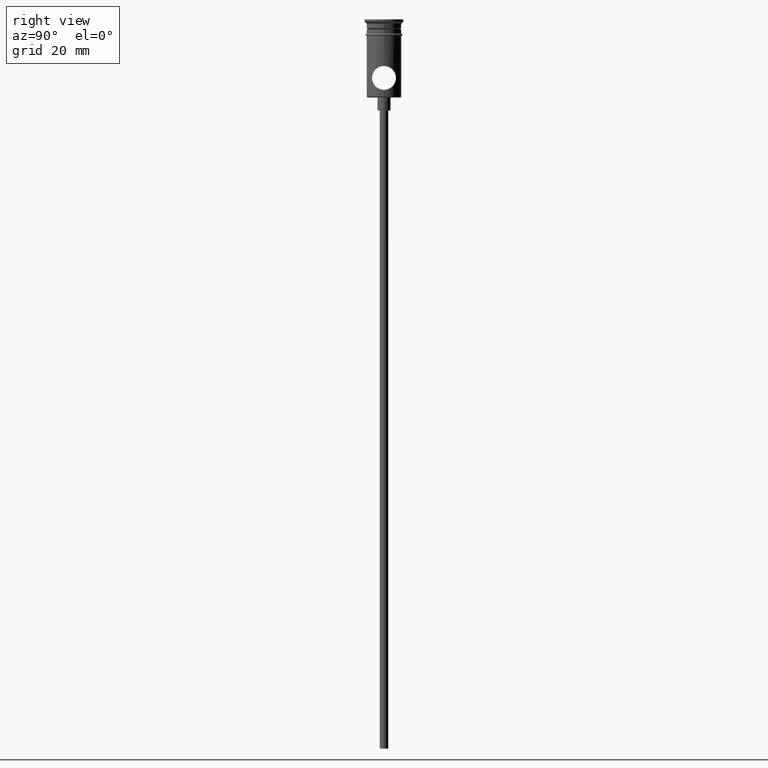
[diagram: clean part render]
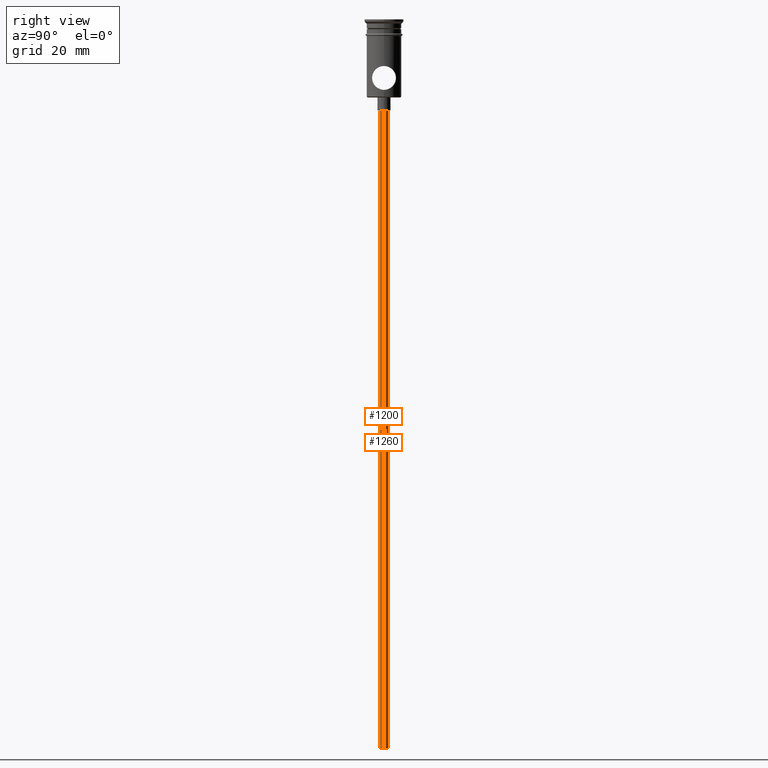
[diagram: same view with one multi-face feature highlighted, each face labeled with its STEP entity id]
A machine part, right view. The highlighted faces form ONE feature: a constant-radius fillet chain: 2 tangent blend faces with common blend radius 1 mm. The faces share edges in the B-rep.
Their STEP definitions:
[1] entity #1260 (Cylinder):
#31 = CARTESIAN_POINT ( 'NONE',  ( 0.000000000000000000, 0.000000000000000000, -20.99999999999999645 ) ) ;
#51 = ORIENTED_EDGE ( 'NONE', *, *, #743, .T. ) ;
#81 = DIRECTION ( 'NONE',  ( -1.000000000000000000, 0.000000000000000000, 0.000000000000000000 ) ) ;
#82 = FACE_OUTER_BOUND ( 'NONE', #456, .T. ) ;
#83 = EDGE_CURVE ( 'NONE', #607, #355, #482, .T. ) ;
#85 = DIRECTION ( 'NONE',  ( -0.000000000000000000, -0.000000000000000000, 1.000000000000000000 ) ) ;
#137 = AXIS2_PLACEMENT_3D ( 'NONE', #219, #1082, #81 ) ;
#154 = DIRECTION ( 'NONE',  ( -1.000000000000000000, 0.000000000000000000, 0.000000000000000000 ) ) ;
#219 = CARTESIAN_POINT ( 'NONE',  ( 0.000000000000000000, 0.000000000000000000, -167.9999999999999716 ) ) ;
#222 = ORIENTED_EDGE ( 'NONE', *, *, #83, .F. ) ;
#288 = CARTESIAN_POINT ( 'NONE',  ( 0.9999999999999997780, 0.000000000000000000, -20.99999999999999645 ) ) ;
#345 = CARTESIAN_POINT ( 'NONE',  ( -0.9999999999999997780, 1.224646799147352961E-16, -20.99999999999999645 ) ) ;
#355 = VERTEX_POINT ( 'NONE', #1060 ) ;
#382 = ORIENTED_EDGE ( 'NONE', *, *, #559, .T. ) ;
#454 = CARTESIAN_POINT ( 'NONE',  ( -0.9999999999999997780, 1.224646799147352961E-16, -167.9999999999999716 ) ) ;
#456 = EDGE_LOOP ( 'NONE', ( #222, #51, #382, #466 ) ) ;
#466 = ORIENTED_EDGE ( 'NONE', *, *, #997, .F. ) ;
#482 = CIRCLE ( 'NONE', #137, 0.9999999999999997780 ) ;
#487 = VECTOR ( 'NONE', #816, 1000.000000000000000 ) ;
#508 = CIRCLE ( 'NONE', #844, 0.9999999999999997780 ) ;
#530 = DIRECTION ( 'NONE',  ( 1.000000000000000000, 0.000000000000000000, 0.000000000000000000 ) ) ;
#559 = EDGE_CURVE ( 'NONE', #716, #1386, #508, .T. ) ;
#607 = VERTEX_POINT ( 'NONE', #1376 ) ;
#716 = VERTEX_POINT ( 'NONE', #345 ) ;
#743 = EDGE_CURVE ( 'NONE', #607, #716, #775, .T. ) ;
#775 = LINE ( 'NONE', #454, #1022 ) ;
#816 = DIRECTION ( 'NONE',  ( -0.000000000000000000, -0.000000000000000000, 1.000000000000000000 ) ) ;
#844 = AXIS2_PLACEMENT_3D ( 'NONE', #31, #909, #154 ) ;
#909 = DIRECTION ( 'NONE',  ( 0.000000000000000000, 0.000000000000000000, -1.000000000000000000 ) ) ;
#925 = CARTESIAN_POINT ( 'NONE',  ( 0.9999999999999997780, 0.000000000000000000, -167.9999999999999716 ) ) ;
#997 = EDGE_CURVE ( 'NONE', #355, #1386, #1141, .T. ) ;
#1006 = AXIS2_PLACEMENT_3D ( 'NONE', #1400, #1190, #530 ) ;
#1022 = VECTOR ( 'NONE', #85, 1000.000000000000000 ) ;
#1060 = CARTESIAN_POINT ( 'NONE',  ( 0.9999999999999997780, 0.000000000000000000, -167.9999999999999716 ) ) ;
#1077 = CYLINDRICAL_SURFACE ( 'NONE', #1006, 0.9999999999999997780 ) ;
#1082 = DIRECTION ( 'NONE',  ( 0.000000000000000000, 0.000000000000000000, -1.000000000000000000 ) ) ;
#1141 = LINE ( 'NONE', #925, #487 ) ;
#1190 = DIRECTION ( 'NONE',  ( -0.000000000000000000, -0.000000000000000000, 1.000000000000000000 ) ) ;
#1260 = ADVANCED_FACE ( 'NONE', ( #82 ), #1077, .T. ) ;
#1376 = CARTESIAN_POINT ( 'NONE',  ( -0.9999999999999997780, 1.224646799147352961E-16, -167.9999999999999716 ) ) ;
#1386 = VERTEX_POINT ( 'NONE', #288 ) ;
#1400 = CARTESIAN_POINT ( 'NONE',  ( 0.000000000000000000, 0.000000000000000000, -167.9999999999999716 ) ) ;
[2] entity #1200 (Cylinder):
#85 = DIRECTION ( 'NONE',  ( -0.000000000000000000, -0.000000000000000000, 1.000000000000000000 ) ) ;
#217 = CARTESIAN_POINT ( 'NONE',  ( 0.000000000000000000, 0.000000000000000000, -167.9999999999999716 ) ) ;
#254 = EDGE_LOOP ( 'NONE', ( #646, #803, #691, #1164 ) ) ;
#288 = CARTESIAN_POINT ( 'NONE',  ( 0.9999999999999997780, 0.000000000000000000, -20.99999999999999645 ) ) ;
#290 = CARTESIAN_POINT ( 'NONE',  ( 0.000000000000000000, 0.000000000000000000, -20.99999999999999645 ) ) ;
#337 = FACE_OUTER_BOUND ( 'NONE', #254, .T. ) ;
#345 = CARTESIAN_POINT ( 'NONE',  ( -0.9999999999999997780, 1.224646799147352961E-16, -20.99999999999999645 ) ) ;
#355 = VERTEX_POINT ( 'NONE', #1060 ) ;
#420 = CIRCLE ( 'NONE', #966, 0.9999999999999997780 ) ;
#454 = CARTESIAN_POINT ( 'NONE',  ( -0.9999999999999997780, 1.224646799147352961E-16, -167.9999999999999716 ) ) ;
#487 = VECTOR ( 'NONE', #816, 1000.000000000000000 ) ;
#511 = AXIS2_PLACEMENT_3D ( 'NONE', #217, #1091, #856 ) ;
#525 = DIRECTION ( 'NONE',  ( 0.000000000000000000, 0.000000000000000000, -1.000000000000000000 ) ) ;
#561 = CARTESIAN_POINT ( 'NONE',  ( 0.000000000000000000, 0.000000000000000000, -167.9999999999999716 ) ) ;
#584 = CIRCLE ( 'NONE', #511, 0.9999999999999997780 ) ;
#607 = VERTEX_POINT ( 'NONE', #1376 ) ;
#646 = ORIENTED_EDGE ( 'NONE', *, *, #743, .F. ) ;
#652 = AXIS2_PLACEMENT_3D ( 'NONE', #561, #1275, #739 ) ;
#691 = ORIENTED_EDGE ( 'NONE', *, *, #997, .T. ) ;
#716 = VERTEX_POINT ( 'NONE', #345 ) ;
#739 = DIRECTION ( 'NONE',  ( 1.000000000000000000, 0.000000000000000000, 0.000000000000000000 ) ) ;
#743 = EDGE_CURVE ( 'NONE', #607, #716, #775, .T. ) ;
#775 = LINE ( 'NONE', #454, #1022 ) ;
#803 = ORIENTED_EDGE ( 'NONE', *, *, #813, .F. ) ;
#813 = EDGE_CURVE ( 'NONE', #355, #607, #584, .T. ) ;
#816 = DIRECTION ( 'NONE',  ( -0.000000000000000000, -0.000000000000000000, 1.000000000000000000 ) ) ;
#856 = DIRECTION ( 'NONE',  ( -1.000000000000000000, 0.000000000000000000, 0.000000000000000000 ) ) ;
#925 = CARTESIAN_POINT ( 'NONE',  ( 0.9999999999999997780, 0.000000000000000000, -167.9999999999999716 ) ) ;
#966 = AXIS2_PLACEMENT_3D ( 'NONE', #290, #525, #1253 ) ;
#980 = EDGE_CURVE ( 'NONE', #1386, #716, #420, .T. ) ;
#997 = EDGE_CURVE ( 'NONE', #355, #1386, #1141, .T. ) ;
#1022 = VECTOR ( 'NONE', #85, 1000.000000000000000 ) ;
#1060 = CARTESIAN_POINT ( 'NONE',  ( 0.9999999999999997780, 0.000000000000000000, -167.9999999999999716 ) ) ;
#1091 = DIRECTION ( 'NONE',  ( 0.000000000000000000, 0.000000000000000000, -1.000000000000000000 ) ) ;
#1141 = LINE ( 'NONE', #925, #487 ) ;
#1164 = ORIENTED_EDGE ( 'NONE', *, *, #980, .T. ) ;
#1200 = ADVANCED_FACE ( 'NONE', ( #337 ), #1407, .T. ) ;
#1253 = DIRECTION ( 'NONE',  ( -1.000000000000000000, 0.000000000000000000, 0.000000000000000000 ) ) ;
#1275 = DIRECTION ( 'NONE',  ( -0.000000000000000000, -0.000000000000000000, 1.000000000000000000 ) ) ;
#1376 = CARTESIAN_POINT ( 'NONE',  ( -0.9999999999999997780, 1.224646799147352961E-16, -167.9999999999999716 ) ) ;
#1386 = VERTEX_POINT ( 'NONE', #288 ) ;
#1407 = CYLINDRICAL_SURFACE ( 'NONE', #652, 0.9999999999999997780 ) ;